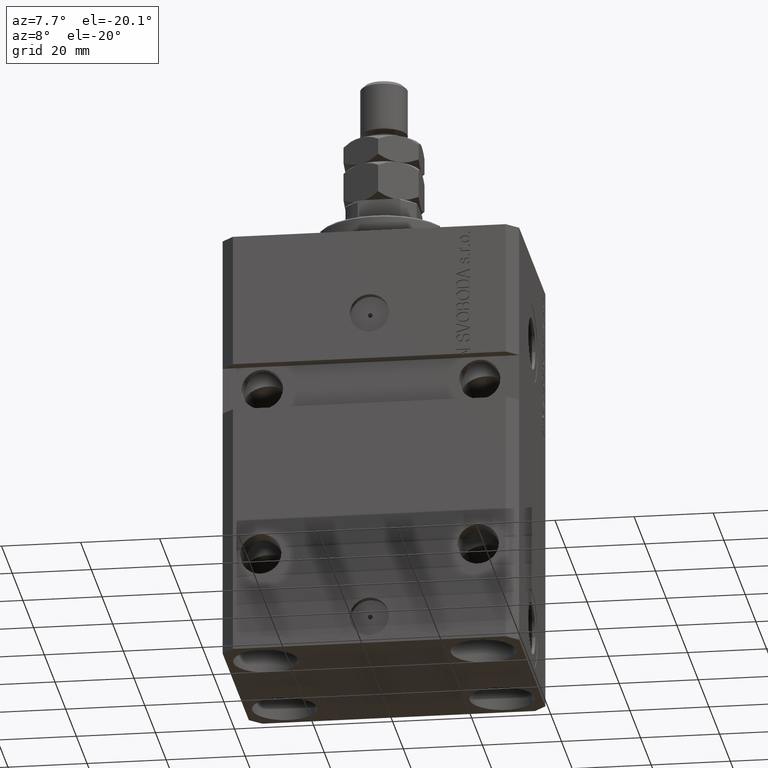
[diagram: clean part render]
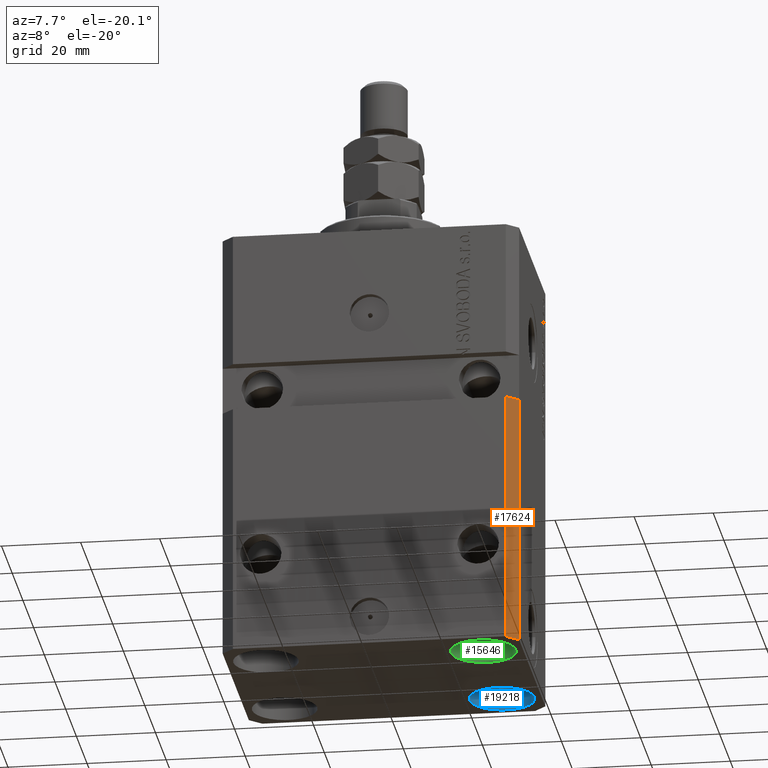
[diagram: same view with three faces highlighted in distinct colors, each labeled with its STEP entity id]
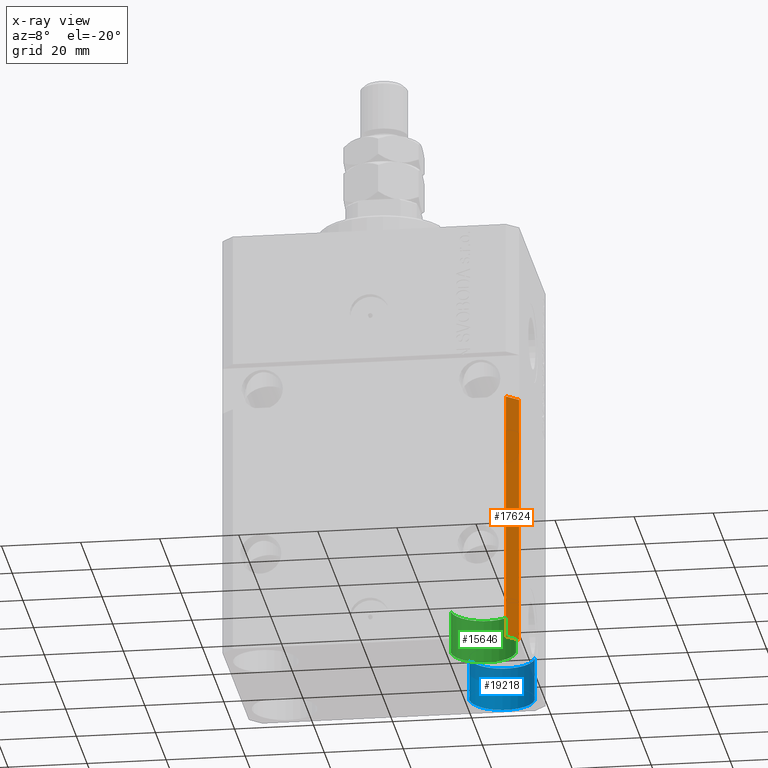
[diagram: x-ray of the same camera — body ghosted, the three highlighted faces saturated]
A machine part, auxiliary view with three faces highlighted in distinct colors.
The next image is the same camera in x-ray (body ghosted, the three faces saturated) — at least one of them is partly hidden behind the body in this view.
Their STEP definitions:

[orange] entity #17624 — the highlighted planar face has unit normal (0.7071, -0.7071, 0).
#210 = DIRECTION ( 'NONE',  ( 0.7071067811865474617, 0.7071067811865474617, -6.542051911182397555E-17 ) ) ;
#729 = LINE ( 'NONE', #42820, #30536 ) ;
#1434 = CARTESIAN_POINT ( 'NONE',  ( 34.49999999999999289, -27.49999999999999645, -110.0000000000000000 ) ) ;
#3014 = DIRECTION ( 'NONE',  ( 0.000000000000000000, 0.000000000000000000, 1.000000000000000000 ) ) ;
#3265 = ORIENTED_EDGE ( 'NONE', *, *, #23046, .F. ) ;
#3715 = ORIENTED_EDGE ( 'NONE', *, *, #44682, .T. ) ;
#4606 = AXIS2_PLACEMENT_3D ( 'NONE', #13700, #27954, #42215 ) ;
#5247 = VECTOR ( 'NONE', #210, 1000.000000000000114 ) ;
#6294 = VECTOR ( 'NONE', #3014, 1000.000000000000000 ) ;
#6520 = LINE ( 'NONE', #35023, #6294 ) ;
#6631 = ORIENTED_EDGE ( 'NONE', *, *, #8023, .T. ) ;
#7169 = CARTESIAN_POINT ( 'NONE',  ( 34.49999999999999289, -27.49999999999999289, -46.00000000000000711 ) ) ;
#8023 = EDGE_CURVE ( 'NONE', #18594, #15375, #729, .T. ) ;
#12404 = VERTEX_POINT ( 'NONE', #7169 ) ;
#13700 = CARTESIAN_POINT ( 'NONE',  ( 34.49999999999999289, -27.49999999999999645, -110.0000000000000000 ) ) ;
#15375 = VERTEX_POINT ( 'NONE', #41706 ) ;
#17624 = ADVANCED_FACE ( 'NONE', ( #24217 ), #35201, .T. ) ;
#18015 = DIRECTION ( 'NONE',  ( 0.000000000000000000, 0.000000000000000000, 1.000000000000000000 ) ) ;
#18594 = VERTEX_POINT ( 'NONE', #20242 ) ;
#18694 = CARTESIAN_POINT ( 'NONE',  ( 34.49999999999999289, -27.49999999999999645, -110.0000000000000000 ) ) ;
#19146 = DIRECTION ( 'NONE',  ( 0.7071067811865474617, 0.7071067811865474617, 0.000000000000000000 ) ) ;
#19307 = EDGE_LOOP ( 'NONE', ( #34523, #3265, #3715, #6631 ) ) ;
#20242 = CARTESIAN_POINT ( 'NONE',  ( 37.49999999999999289, -24.50000000000000000, -110.0000000000000000 ) ) ;
#23046 = EDGE_CURVE ( 'NONE', #39041, #12404, #6520, .T. ) ;
#24217 = FACE_OUTER_BOUND ( 'NONE', #19307, .T. ) ;
#26729 = CARTESIAN_POINT ( 'NONE',  ( 34.49999999999999289, -27.49999999999999289, -46.00000000000000000 ) ) ;
#27954 = DIRECTION ( 'NONE',  ( 0.7071067811865475727, -0.7071067811865475727, 0.000000000000000000 ) ) ;
#29464 = LINE ( 'NONE', #18694, #45712 ) ;
#30536 = VECTOR ( 'NONE', #18015, 1000.000000000000000 ) ;
#33120 = LINE ( 'NONE', #26729, #5247 ) ;
#34523 = ORIENTED_EDGE ( 'NONE', *, *, #40404, .F. ) ;
#35023 = CARTESIAN_POINT ( 'NONE',  ( 34.49999999999999289, -27.49999999999999645, -110.0000000000000000 ) ) ;
#35201 = PLANE ( 'NONE',  #4606 ) ;
#39041 = VERTEX_POINT ( 'NONE', #1434 ) ;
#40404 = EDGE_CURVE ( 'NONE', #12404, #15375, #33120, .T. ) ;
#41706 = CARTESIAN_POINT ( 'NONE',  ( 37.49999999999999289, -24.49999999999999289, -46.00000000000000711 ) ) ;
#42215 = DIRECTION ( 'NONE',  ( 0.7071067811865474617, 0.7071067811865474617, 0.000000000000000000 ) ) ;
#42820 = CARTESIAN_POINT ( 'NONE',  ( 37.49999999999999289, -24.50000000000000000, -110.0000000000000000 ) ) ;
#44682 = EDGE_CURVE ( 'NONE', #39041, #18594, #29464, .T. ) ;
#45712 = VECTOR ( 'NONE', #19146, 1000.000000000000114 ) ;

[blue] entity #19218 — the highlighted cylindrical surface (edge-blend (fillet) strip) has radius 8.25 mm, axis along (-0, -0, -1).
#1376 = VECTOR ( 'NONE', #7794, 1000.000000000000000 ) ;
#2784 = CARTESIAN_POINT ( 'NONE',  ( 35.74999999999999289, 17.50000000000001066, -110.0000000000000000 ) ) ;
#4050 = LINE ( 'NONE', #39812, #1376 ) ;
#4346 = DIRECTION ( 'NONE',  ( -0.000000000000000000, -0.000000000000000000, -1.000000000000000000 ) ) ;
#5306 = ORIENTED_EDGE ( 'NONE', *, *, #25844, .T. ) ;
#6362 = EDGE_CURVE ( 'NONE', #16942, #25800, #10375, .T. ) ;
#6892 = EDGE_CURVE ( 'NONE', #16942, #23006, #4050, .T. ) ;
#7210 = DIRECTION ( 'NONE',  ( -1.000000000000000000, 0.000000000000000000, 0.000000000000000000 ) ) ;
#7794 = DIRECTION ( 'NONE',  ( -0.000000000000000000, -0.000000000000000000, -1.000000000000000000 ) ) ;
#8774 = AXIS2_PLACEMENT_3D ( 'NONE', #27960, #34740, #24222 ) ;
#9095 = ORIENTED_EDGE ( 'NONE', *, *, #6892, .F. ) ;
#10375 = CIRCLE ( 'NONE', #44691, 8.249999999999992895 ) ;
#10852 = VECTOR ( 'NONE', #4346, 1000.000000000000000 ) ;
#11590 = CARTESIAN_POINT ( 'NONE',  ( 19.25000000000000000, 17.50000000000001066, -99.00000000000000000 ) ) ;
#14899 = CARTESIAN_POINT ( 'NONE',  ( 27.49999999999999645, 17.50000000000001066, -99.00000000000000000 ) ) ;
#16280 = DIRECTION ( 'NONE',  ( 1.000000000000000000, 0.000000000000000000, 0.000000000000000000 ) ) ;
#16942 = VERTEX_POINT ( 'NONE', #31446 ) ;
#17938 = FACE_OUTER_BOUND ( 'NONE', #24771, .T. ) ;
#19218 = ADVANCED_FACE ( 'NONE', ( #17938 ), #35497, .F. ) ;
#22784 = LINE ( 'NONE', #43625, #10852 ) ;
#23006 = VERTEX_POINT ( 'NONE', #2784 ) ;
#23592 = VERTEX_POINT ( 'NONE', #39497 ) ;
#24222 = DIRECTION ( 'NONE',  ( 1.000000000000000000, 0.000000000000000000, 0.000000000000000000 ) ) ;
#24771 = EDGE_LOOP ( 'NONE', ( #9095, #34095, #5306, #42287 ) ) ;
#25800 = VERTEX_POINT ( 'NONE', #11590 ) ;
#25844 = EDGE_CURVE ( 'NONE', #25800, #23592, #22784, .T. ) ;
#27960 = CARTESIAN_POINT ( 'NONE',  ( 27.49999999999999645, 17.50000000000001066, -110.0000000000000000 ) ) ;
#28544 = AXIS2_PLACEMENT_3D ( 'NONE', #46018, #45791, #7210 ) ;
#31446 = CARTESIAN_POINT ( 'NONE',  ( 35.74999999999999289, 17.50000000000001066, -99.00000000000000000 ) ) ;
#33444 = EDGE_CURVE ( 'NONE', #23006, #23592, #43132, .T. ) ;
#34095 = ORIENTED_EDGE ( 'NONE', *, *, #6362, .T. ) ;
#34740 = DIRECTION ( 'NONE',  ( -0.000000000000000000, -0.000000000000000000, 1.000000000000000000 ) ) ;
#35497 = CYLINDRICAL_SURFACE ( 'NONE', #28544, 8.249999999999996447 ) ;
#38018 = DIRECTION ( 'NONE',  ( -0.000000000000000000, -0.000000000000000000, 1.000000000000000000 ) ) ;
#39497 = CARTESIAN_POINT ( 'NONE',  ( 19.25000000000000000, 17.50000000000001066, -110.0000000000000000 ) ) ;
#39812 = CARTESIAN_POINT ( 'NONE',  ( 35.74999999999999289, 17.50000000000001066, -99.00000000000000000 ) ) ;
#42287 = ORIENTED_EDGE ( 'NONE', *, *, #33444, .F. ) ;
#43132 = CIRCLE ( 'NONE', #8774, 8.249999999999992895 ) ;
#43625 = CARTESIAN_POINT ( 'NONE',  ( 19.25000000000000000, 17.50000000000001066, -99.00000000000000000 ) ) ;
#44691 = AXIS2_PLACEMENT_3D ( 'NONE', #14899, #38018, #16280 ) ;
#45791 = DIRECTION ( 'NONE',  ( -0.000000000000000000, -0.000000000000000000, -1.000000000000000000 ) ) ;
#46018 = CARTESIAN_POINT ( 'NONE',  ( 27.49999999999999645, 17.50000000000001066, -99.00000000000000000 ) ) ;

[green] entity #15646 — the highlighted cylindrical surface (edge-blend (fillet) strip) has radius 8.25 mm, axis along (-0, -0, -1).
#2364 = CARTESIAN_POINT ( 'NONE',  ( 19.25000000000000000, -17.50000000000000000, -99.00000000000000000 ) ) ;
#3277 = CYLINDRICAL_SURFACE ( 'NONE', #6908, 8.250000000000003553 ) ;
#4212 = ORIENTED_EDGE ( 'NONE', *, *, #30405, .F. ) ;
#6775 = CARTESIAN_POINT ( 'NONE',  ( 27.50000000000000355, -17.50000000000000000, -99.00000000000000000 ) ) ;
#6908 = AXIS2_PLACEMENT_3D ( 'NONE', #6775, #30428, #42762 ) ;
#7226 = FACE_OUTER_BOUND ( 'NONE', #22099, .T. ) ;
#7253 = DIRECTION ( 'NONE',  ( -0.000000000000000000, -0.000000000000000000, -1.000000000000000000 ) ) ;
#8356 = CARTESIAN_POINT ( 'NONE',  ( 19.25000000000000000, -17.50000000000000000, -110.0000000000000000 ) ) ;
#11459 = DIRECTION ( 'NONE',  ( 1.000000000000000000, 0.000000000000000000, 0.000000000000000000 ) ) ;
#13118 = AXIS2_PLACEMENT_3D ( 'NONE', #37940, #30705, #30463 ) ;
#14569 = VERTEX_POINT ( 'NONE', #16113 ) ;
#15646 = ADVANCED_FACE ( 'NONE', ( #7226 ), #3277, .F. ) ;
#15689 = VECTOR ( 'NONE', #24975, 1000.000000000000000 ) ;
#16113 = CARTESIAN_POINT ( 'NONE',  ( 35.75000000000000711, -17.50000000000000000, -99.00000000000000000 ) ) ;
#16176 = VECTOR ( 'NONE', #7253, 1000.000000000000000 ) ;
#17248 = AXIS2_PLACEMENT_3D ( 'NONE', #37371, #36461, #11459 ) ;
#22036 = ORIENTED_EDGE ( 'NONE', *, *, #35290, .F. ) ;
#22099 = EDGE_LOOP ( 'NONE', ( #22036, #35587, #39697, #4212 ) ) ;
#24975 = DIRECTION ( 'NONE',  ( -0.000000000000000000, -0.000000000000000000, -1.000000000000000000 ) ) ;
#29065 = VERTEX_POINT ( 'NONE', #33954 ) ;
#29589 = EDGE_CURVE ( 'NONE', #32513, #41364, #32480, .T. ) ;
#30405 = EDGE_CURVE ( 'NONE', #29065, #41364, #37835, .T. ) ;
#30428 = DIRECTION ( 'NONE',  ( -0.000000000000000000, -0.000000000000000000, -1.000000000000000000 ) ) ;
#30463 = DIRECTION ( 'NONE',  ( 1.000000000000000000, 0.000000000000000000, 0.000000000000000000 ) ) ;
#30705 = DIRECTION ( 'NONE',  ( -0.000000000000000000, -0.000000000000000000, 1.000000000000000000 ) ) ;
#32480 = LINE ( 'NONE', #39954, #16176 ) ;
#32513 = VERTEX_POINT ( 'NONE', #2364 ) ;
#33668 = CIRCLE ( 'NONE', #17248, 8.250000000000000000 ) ;
#33954 = CARTESIAN_POINT ( 'NONE',  ( 35.75000000000000711, -17.50000000000000000, -110.0000000000000000 ) ) ;
#35290 = EDGE_CURVE ( 'NONE', #14569, #29065, #39444, .T. ) ;
#35587 = ORIENTED_EDGE ( 'NONE', *, *, #37594, .T. ) ;
#36461 = DIRECTION ( 'NONE',  ( -0.000000000000000000, -0.000000000000000000, 1.000000000000000000 ) ) ;
#37371 = CARTESIAN_POINT ( 'NONE',  ( 27.50000000000000355, -17.50000000000000000, -99.00000000000000000 ) ) ;
#37594 = EDGE_CURVE ( 'NONE', #14569, #32513, #33668, .T. ) ;
#37835 = CIRCLE ( 'NONE', #13118, 8.250000000000000000 ) ;
#37940 = CARTESIAN_POINT ( 'NONE',  ( 27.50000000000000355, -17.50000000000000000, -110.0000000000000000 ) ) ;
#39444 = LINE ( 'NONE', #42749, #15689 ) ;
#39697 = ORIENTED_EDGE ( 'NONE', *, *, #29589, .T. ) ;
#39954 = CARTESIAN_POINT ( 'NONE',  ( 19.25000000000000000, -17.50000000000000000, -99.00000000000000000 ) ) ;
#41364 = VERTEX_POINT ( 'NONE', #8356 ) ;
#42749 = CARTESIAN_POINT ( 'NONE',  ( 35.75000000000000711, -17.50000000000000000, -99.00000000000000000 ) ) ;
#42762 = DIRECTION ( 'NONE',  ( -1.000000000000000000, 0.000000000000000000, 0.000000000000000000 ) ) ;